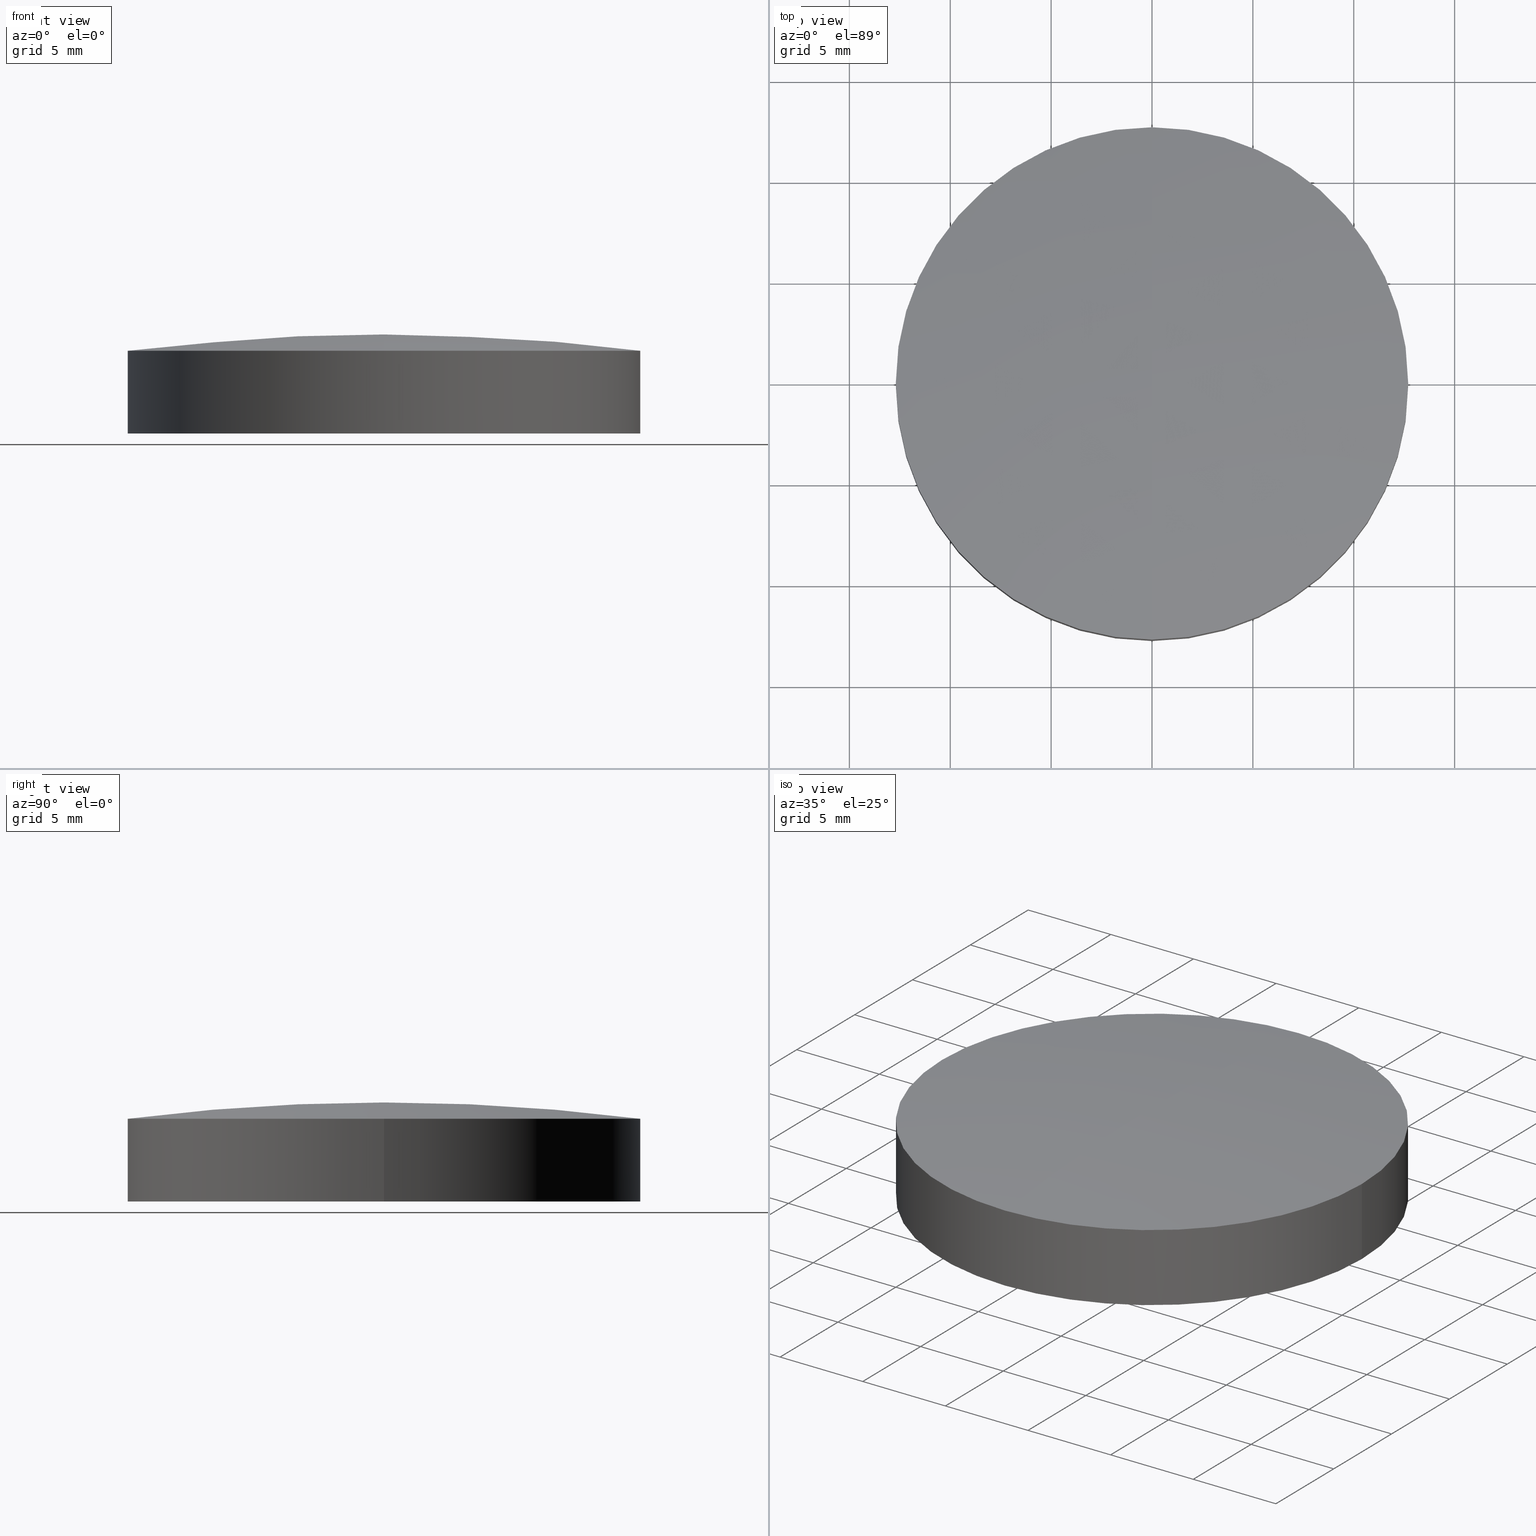
[diagram: canonical four-view strip — front | top / right | iso, engineering-drawing reading convention]
A machine part, canonical four-view strip (front | top / right | iso — engineering-drawing reading convention). The complete STEP part file that produces these views, byte-faithful:
ISO-10303-21;
HEADER;
FILE_DESCRIPTION (( 'STEP AP214' ),
    '1' );
FILE_NAME ('3473-E0W.STEP',
    '2009-12-21T17:00:09',
    ( ' ' ),
    ( ' ' ),
    'SwSTEP 2.0',
    'SolidWorks 2009',
    '' );
FILE_SCHEMA (( 'AUTOMOTIVE_DESIGN' ));
ENDSEC;

DATA;
#1 = ADVANCED_FACE ( 'NONE', ( #125 ), #168, .T. ) ;
#2 = ORIENTED_EDGE ( 'NONE', *, *, #20, .T. ) ;
#3 = VERTEX_POINT ( 'NONE', #68 ) ;
#4 = EDGE_LOOP ( 'NONE', ( #5, #59, #44, #35 ) ) ;
#5 = ORIENTED_EDGE ( 'NONE', *, *, #11, .F. ) ;
#6 = ORIENTED_EDGE ( 'NONE', *, *, #19, .T. ) ;
#7 = MANIFOLD_SOLID_BREP ( 'NONE', #53 ) ;
#8 = EDGE_CURVE ( 'NONE', #13, #9, #93, .T. ) ;
#9 = VERTEX_POINT ( 'NONE', #94 ) ;
#10 = ORIENTED_EDGE ( 'NONE', *, *, #11, .T. ) ;
#11 = EDGE_CURVE ( 'NONE', #13, #12, #127, .T. ) ;
#12 = VERTEX_POINT ( 'NONE', #150 ) ;
#13 = VERTEX_POINT ( 'NONE', #149 ) ;
#14 = EDGE_LOOP ( 'NONE', ( #60, #10, #15, #18 ) ) ;
#15 = ORIENTED_EDGE ( 'NONE', *, *, #16, .F. ) ;
#16 = EDGE_CURVE ( 'NONE', #17, #12, #189, .T. ) ;
#17 = VERTEX_POINT ( 'NONE', #190 ) ;
#18 = ORIENTED_EDGE ( 'NONE', *, *, #61, .F. ) ;
#19 = EDGE_CURVE ( 'NONE', #17, #25, #123, .T. ) ;
#20 = EDGE_CURVE ( 'NONE', #21, #23, #85, .T. ) ;
#21 = VERTEX_POINT ( 'NONE', #81 ) ;
#22 = EDGE_CURVE ( 'NONE', #25, #23, #141, .T. ) ;
#23 = VERTEX_POINT ( 'NONE', #137 ) ;
#24 = EDGE_CURVE ( 'NONE', #23, #3, #109, .T. ) ;
#25 = VERTEX_POINT ( 'NONE', #104 ) ;
#26 = ORIENTED_EDGE ( 'NONE', *, *, #20, .F. ) ;
#27 = EDGE_CURVE ( 'NONE', #3, #52, #102, .T. ) ;
#28 = ADVANCED_FACE ( 'NONE', ( #103 ), #118, .T. ) ;
#29 = EDGE_LOOP ( 'NONE', ( #41, #43, #55, #46, #30, #39 ) ) ;
#30 = ORIENTED_EDGE ( 'NONE', *, *, #47, .F. ) ;
#31 = ORIENTED_EDGE ( 'NONE', *, *, #56, .F. ) ;
#32 = EDGE_LOOP ( 'NONE', ( #37, #38, #33, #51 ) ) ;
#33 = ORIENTED_EDGE ( 'NONE', *, *, #49, .T. ) ;
#34 = EDGE_LOOP ( 'NONE', ( #2, #111, #58, #42 ) ) ;
#35 = ORIENTED_EDGE ( 'NONE', *, *, #16, .T. ) ;
#36 = EDGE_CURVE ( 'NONE', #25, #13, #183, .T. ) ;
#37 = ORIENTED_EDGE ( 'NONE', *, *, #27, .F. ) ;
#38 = ORIENTED_EDGE ( 'NONE', *, *, #47, .T. ) ;
#39 = ORIENTED_EDGE ( 'NONE', *, *, #24, .F. ) ;
#40 = ADVANCED_FACE ( 'NONE', ( #178 ), #233, .F. ) ;
#41 = ORIENTED_EDGE ( 'NONE', *, *, #22, .F. ) ;
#42 = ORIENTED_EDGE ( 'NONE', *, *, #54, .F. ) ;
#43 = ORIENTED_EDGE ( 'NONE', *, *, #36, .T. ) ;
#44 = ORIENTED_EDGE ( 'NONE', *, *, #19, .F. ) ;
#45 = ORIENTED_EDGE ( 'NONE', *, *, #22, .T. ) ;
#46 = ORIENTED_EDGE ( 'NONE', *, *, #56, .T. ) ;
#47 = EDGE_CURVE ( 'NONE', #3, #50, #280, .T. ) ;
#48 = ORIENTED_EDGE ( 'NONE', *, *, #49, .F. ) ;
#49 = EDGE_CURVE ( 'NONE', #50, #21, #273, .T. ) ;
#50 = VERTEX_POINT ( 'NONE', #215 ) ;
#51 = ORIENTED_EDGE ( 'NONE', *, *, #54, .T. ) ;
#52 = VERTEX_POINT ( 'NONE', #214 ) ;
#53 = CLOSED_SHELL ( 'NONE', ( #65, #62, #1, #57, #28, #40 ) ) ;
#54 = EDGE_CURVE ( 'NONE', #21, #52, #264, .T. ) ;
#55 = ORIENTED_EDGE ( 'NONE', *, *, #8, .T. ) ;
#56 = EDGE_CURVE ( 'NONE', #9, #50, #218, .T. ) ;
#57 = ADVANCED_FACE ( 'NONE', ( #266 ), #253, .T. ) ;
#58 = ORIENTED_EDGE ( 'NONE', *, *, #27, .T. ) ;
#59 = ORIENTED_EDGE ( 'NONE', *, *, #36, .F. ) ;
#60 = ORIENTED_EDGE ( 'NONE', *, *, #8, .F. ) ;
#61 = EDGE_CURVE ( 'NONE', #9, #17, #262, .T. ) ;
#62 = ADVANCED_FACE ( 'NONE', ( #263 ), #239, .T. ) ;
#63 = EDGE_LOOP ( 'NONE', ( #64, #6, #45, #26, #48, #31 ) ) ;
#64 = ORIENTED_EDGE ( 'NONE', *, *, #61, .T. ) ;
#65 = ADVANCED_FACE ( 'NONE', ( #240 ), #257, .F. ) ;
#66 = DIRECTION ( 'NONE',  ( -1.000000000000000000, 0.0000000000000000000, 0.0000000000000000000 ) ) ;
#67 = CARTESIAN_POINT ( 'NONE',  ( 0.0000000000000000000, 0.0000000000000000000, -97.54413107555106400 ) ) ;
#68 = CARTESIAN_POINT ( 'NONE',  ( -1.555250069354418500E-015, -12.69999999999999200, 1.646140624853117200 ) ) ;
#69 =( GEOMETRIC_REPRESENTATION_CONTEXT ( 3 ) GLOBAL_UNCERTAINTY_ASSIGNED_CONTEXT ( ( #146 ) ) GLOBAL_UNIT_ASSIGNED_CONTEXT ( ( #87, #145, #144 ) ) REPRESENTATION_CONTEXT ( 'NONE', 'WORKASPACE' ) );
#70 = SURFACE_STYLE_USAGE ( .BOTH. , #143 ) ;
#71 = COLOUR_RGB ( '',0.9568627450980391500, 0.9490196078431372100, 0.9607843137254902200 ) ;
#72 =( GEOMETRIC_REPRESENTATION_CONTEXT ( 3 ) GLOBAL_UNCERTAINTY_ASSIGNED_CONTEXT ( ( #73 ) ) GLOBAL_UNIT_ASSIGNED_CONTEXT ( ( #130, #129, #128 ) ) REPRESENTATION_CONTEXT ( 'NONE', 'WORKASPACE' ) );
#73 = UNCERTAINTY_MEASURE_WITH_UNIT (LENGTH_MEASURE( 1.000000000000000100E-005 ), #130, 'distance_accuracy_value', 'NONE');
#74 =( NAMED_UNIT ( * ) SI_UNIT ( $, .STERADIAN. ) SOLID_ANGLE_UNIT ( ) );
#75 = SURFACE_STYLE_FILL_AREA ( #76 ) ;
#76 = FILL_AREA_STYLE ('',( #77 ) ) ;
#77 = FILL_AREA_STYLE_COLOUR ( '', #78 ) ;
#78 = COLOUR_RGB ( '',0.7960784313725489700, 0.8235294117647058400, 0.9372549019607843100 ) ;
#79 = DIRECTION ( 'NONE',  ( 0.0000000000000000000, 1.000000000000000000, 0.0000000000000000000 ) ) ;
#80 = SURFACE_STYLE_FILL_AREA ( #131 ) ;
#81 = CARTESIAN_POINT ( 'NONE',  ( 0.0000000000000000000, 12.69999999999999200, 1.646140624853117200 ) ) ;
#82 = DIRECTION ( 'NONE',  ( 1.000000000000000000, 0.0000000000000000000, 0.0000000000000000000 ) ) ;
#83 = DIRECTION ( 'NONE',  ( -0.0000000000000000000, -0.0000000000000000000, 1.000000000000000000 ) ) ;
#84 = AXIS2_PLACEMENT_3D ( 'NONE', #124, #83, #82 ) ;
#85 = CIRCLE ( 'NONE', #84, 12.70000000000000100 ) ;
#86 = STYLED_ITEM ( 'NONE', ( #147 ), #1 ) ;
#87 =( LENGTH_UNIT ( ) NAMED_UNIT ( * ) SI_UNIT ( .MILLI., .METRE. ) );
#88 = MECHANICAL_DESIGN_GEOMETRIC_PRESENTATION_REPRESENTATION (  '', ( #133 ), #69 ) ;
#89 = DIRECTION ( 'NONE',  ( 1.000000000000000000, 0.0000000000000000000, 0.0000000000000000000 ) ) ;
#90 = DIRECTION ( 'NONE',  ( -0.0000000000000000000, -0.0000000000000000000, 1.000000000000000000 ) ) ;
#91 = CARTESIAN_POINT ( 'NONE',  ( 0.0000000000000000000, 0.0000000000000000000, -2.455868924448944200 ) ) ;
#92 = AXIS2_PLACEMENT_3D ( 'NONE', #91, #90, #89 ) ;
#93 = CIRCLE ( 'NONE', #92, 12.70000000000000500 ) ;
#94 = CARTESIAN_POINT ( 'NONE',  ( 12.70000000000000500, 0.0000000000000000000, -2.455868924448944200 ) ) ;
#95 =( LENGTH_UNIT ( ) NAMED_UNIT ( * ) SI_UNIT ( .MILLI., .METRE. ) );
#96 = PRESENTATION_LAYER_ASSIGNMENT (  '', '', ( #86 ) ) ;
#97 = UNCERTAINTY_MEASURE_WITH_UNIT (LENGTH_MEASURE( 1.000000000000000100E-005 ), #100, 'distance_accuracy_value', 'NONE');
#98 =( NAMED_UNIT ( * ) SI_UNIT ( $, .STERADIAN. ) SOLID_ANGLE_UNIT ( ) );
#99 =( NAMED_UNIT ( * ) PLANE_ANGLE_UNIT ( ) SI_UNIT ( $, .RADIAN. ) );
#100 =( LENGTH_UNIT ( ) NAMED_UNIT ( * ) SI_UNIT ( .MILLI., .METRE. ) );
#101 = AXIS2_PLACEMENT_3D ( 'NONE', #166, #165, #164 ) ;
#102 = CIRCLE ( 'NONE', #101, 100.0000000000000000 ) ;
#103 = FACE_OUTER_BOUND ( 'NONE', #29, .T. ) ;
#104 = CARTESIAN_POINT ( 'NONE',  ( -12.70000000000000600, 1.555250069354419900E-015, -2.455868924448944200 ) ) ;
#105 = DIRECTION ( 'NONE',  ( 1.000000000000000000, 0.0000000000000000000, 0.0000000000000000000 ) ) ;
#106 = DIRECTION ( 'NONE',  ( -0.0000000000000000000, -0.0000000000000000000, 1.000000000000000000 ) ) ;
#107 = CARTESIAN_POINT ( 'NONE',  ( 0.0000000000000000000, 0.0000000000000000000, 1.646140624853116300 ) ) ;
#108 = AXIS2_PLACEMENT_3D ( 'NONE', #107, #106, #105 ) ;
#109 = CIRCLE ( 'NONE', #108, 12.70000000000000100 ) ;
#110 = MECHANICAL_DESIGN_GEOMETRIC_PRESENTATION_REPRESENTATION (  '', ( #86 ), #167 ) ;
#111 = ORIENTED_EDGE ( 'NONE', *, *, #24, .T. ) ;
#112 =( NAMED_UNIT ( * ) PLANE_ANGLE_UNIT ( ) SI_UNIT ( $, .RADIAN. ) );
#113 = FILL_AREA_STYLE_COLOUR ( '', #177 ) ;
#114 = DIRECTION ( 'NONE',  ( 1.000000000000000000, 0.0000000000000000000, 0.0000000000000000000 ) ) ;
#115 = DIRECTION ( 'NONE',  ( -0.0000000000000000000, -0.0000000000000000000, 1.000000000000000000 ) ) ;
#116 = AXIS2_PLACEMENT_3D ( 'NONE', #117, #115, #114 ) ;
#117 = CARTESIAN_POINT ( 'NONE',  ( 0.0000000000000000000, 0.0000000000000000000, 9.860972679289998800 ) ) ;
#118 = CYLINDRICAL_SURFACE ( 'NONE', #116, 12.70000000000000300 ) ;
#119 = DIRECTION ( 'NONE',  ( 1.000000000000000000, 0.0000000000000000000, 0.0000000000000000000 ) ) ;
#120 = DIRECTION ( 'NONE',  ( -0.0000000000000000000, -0.0000000000000000000, 1.000000000000000000 ) ) ;
#121 = CARTESIAN_POINT ( 'NONE',  ( 0.0000000000000000000, 0.0000000000000000000, -2.455868924448944200 ) ) ;
#122 = AXIS2_PLACEMENT_3D ( 'NONE', #121, #120, #119 ) ;
#123 = CIRCLE ( 'NONE', #122, 12.70000000000000500 ) ;
#124 = CARTESIAN_POINT ( 'NONE',  ( 0.0000000000000000000, 0.0000000000000000000, 1.646140624853116300 ) ) ;
#125 = FACE_OUTER_BOUND ( 'NONE', #34, .T. ) ;
#126 = AXIS2_PLACEMENT_3D ( 'NONE', #153, #152, #151 ) ;
#127 = CIRCLE ( 'NONE', #126, 43.14000000000000100 ) ;
#128 =( NAMED_UNIT ( * ) SI_UNIT ( $, .STERADIAN. ) SOLID_ANGLE_UNIT ( ) );
#129 =( NAMED_UNIT ( * ) PLANE_ANGLE_UNIT ( ) SI_UNIT ( $, .RADIAN. ) );
#130 =( LENGTH_UNIT ( ) NAMED_UNIT ( * ) SI_UNIT ( .MILLI., .METRE. ) );
#131 = FILL_AREA_STYLE ('',( #142 ) ) ;
#132 = PRESENTATION_LAYER_ASSIGNMENT (  '', '', ( #133 ) ) ;
#133 = STYLED_ITEM ( 'NONE', ( #134 ), #7 ) ;
#134 = PRESENTATION_STYLE_ASSIGNMENT (( #135 ) ) ;
#135 = SURFACE_STYLE_USAGE ( .BOTH. , #136 ) ;
#136 = SURFACE_SIDE_STYLE ('',( #75 ) ) ;
#137 = CARTESIAN_POINT ( 'NONE',  ( -12.70000000000000100, 1.555250069354419300E-015, 1.646140624853116300 ) ) ;
#138 = DIRECTION ( 'NONE',  ( -0.0000000000000000000, -0.0000000000000000000, 1.000000000000000000 ) ) ;
#139 = VECTOR ( 'NONE', #138, 1000.000000000000000 ) ;
#140 = CARTESIAN_POINT ( 'NONE',  ( -12.70000000000000300, 1.555250069354419500E-015, 9.860972679289998800 ) ) ;
#141 = LINE ( 'NONE', #140, #139 ) ;
#142 = FILL_AREA_STYLE_COLOUR ( '', #71 ) ;
#143 = SURFACE_SIDE_STYLE ('',( #80 ) ) ;
#144 =( NAMED_UNIT ( * ) SI_UNIT ( $, .STERADIAN. ) SOLID_ANGLE_UNIT ( ) );
#145 =( NAMED_UNIT ( * ) PLANE_ANGLE_UNIT ( ) SI_UNIT ( $, .RADIAN. ) );
#146 = UNCERTAINTY_MEASURE_WITH_UNIT (LENGTH_MEASURE( 1.000000000000000100E-005 ), #87, 'distance_accuracy_value', 'NONE');
#147 = PRESENTATION_STYLE_ASSIGNMENT (( #70 ) ) ;
#148 = UNCERTAINTY_MEASURE_WITH_UNIT (LENGTH_MEASURE( 1.000000000000000100E-005 ), #95, 'distance_accuracy_value', 'NONE');
#149 = CARTESIAN_POINT ( 'NONE',  ( -1.555250069354420500E-015, -12.70000000000001000, -2.455868924448946000 ) ) ;
#150 = CARTESIAN_POINT ( 'NONE',  ( 0.0000000000000000000, 2.641475905194867600E-015, -0.5441310755510686500 ) ) ;
#151 = DIRECTION ( 'NONE',  ( -1.224606353822377300E-016, -1.000000000000000000, 0.0000000000000000000 ) ) ;
#152 = DIRECTION ( 'NONE',  ( -1.000000000000000000, 1.224606353822377300E-016, 0.0000000000000000000 ) ) ;
#153 = CARTESIAN_POINT ( 'NONE',  ( 0.0000000000000000000, 0.0000000000000000000, -43.68413107555106500 ) ) ;
#154 = MECHANICAL_DESIGN_GEOMETRIC_PRESENTATION_REPRESENTATION (  '', ( #156 ), #72 ) ;
#155 = PRESENTATION_LAYER_ASSIGNMENT (  '', '', ( #156 ) ) ;
#156 = STYLED_ITEM ( 'NONE', ( #157 ), #28 ) ;
#157 = PRESENTATION_STYLE_ASSIGNMENT (( #158 ) ) ;
#158 = SURFACE_STYLE_USAGE ( .BOTH. , #159 ) ;
#159 = SURFACE_SIDE_STYLE ('',( #160 ) ) ;
#160 = SURFACE_STYLE_FILL_AREA ( #161 ) ;
#161 = FILL_AREA_STYLE ('',( #162 ) ) ;
#162 = FILL_AREA_STYLE_COLOUR ( '', #163 ) ;
#163 = COLOUR_RGB ( '',0.9568627450980391500, 0.9490196078431372100, 0.9607843137254902200 ) ;
#164 = DIRECTION ( 'NONE',  ( -1.224606353822377300E-016, -1.000000000000000000, 0.0000000000000000000 ) ) ;
#165 = DIRECTION ( 'NONE',  ( -1.000000000000000000, 1.224606353822377300E-016, 0.0000000000000000000 ) ) ;
#166 = CARTESIAN_POINT ( 'NONE',  ( 0.0000000000000000000, 0.0000000000000000000, -97.54413107555106400 ) ) ;
#167 =( GEOMETRIC_REPRESENTATION_CONTEXT ( 3 ) GLOBAL_UNCERTAINTY_ASSIGNED_CONTEXT ( ( #148 ) ) GLOBAL_UNIT_ASSIGNED_CONTEXT ( ( #95, #112, #74 ) ) REPRESENTATION_CONTEXT ( 'NONE', 'WORKASPACE' ) );
#168 = SPHERICAL_SURFACE ( 'NONE', #184, 100.0000000000000000 ) ;
#169 = MECHANICAL_DESIGN_GEOMETRIC_PRESENTATION_REPRESENTATION (  '', ( #171 ), #212 ) ;
#170 = PRESENTATION_LAYER_ASSIGNMENT (  '', '', ( #171 ) ) ;
#171 = STYLED_ITEM ( 'NONE', ( #172 ), #40 ) ;
#172 = PRESENTATION_STYLE_ASSIGNMENT (( #173 ) ) ;
#173 = SURFACE_STYLE_USAGE ( .BOTH. , #174 ) ;
#174 = SURFACE_SIDE_STYLE ('',( #175 ) ) ;
#175 = SURFACE_STYLE_FILL_AREA ( #176 ) ;
#176 = FILL_AREA_STYLE ('',( #113 ) ) ;
#177 = COLOUR_RGB ( '',0.9568627450980391500, 0.9490196078431372100, 0.9607843137254902200 ) ;
#178 = FACE_OUTER_BOUND ( 'NONE', #4, .T. ) ;
#179 = DIRECTION ( 'NONE',  ( 1.000000000000000000, 0.0000000000000000000, 0.0000000000000000000 ) ) ;
#180 = DIRECTION ( 'NONE',  ( -0.0000000000000000000, -0.0000000000000000000, 1.000000000000000000 ) ) ;
#181 = CARTESIAN_POINT ( 'NONE',  ( 0.0000000000000000000, 0.0000000000000000000, -2.455868924448944200 ) ) ;
#182 = AXIS2_PLACEMENT_3D ( 'NONE', #181, #180, #179 ) ;
#183 = CIRCLE ( 'NONE', #182, 12.70000000000000500 ) ;
#184 = AXIS2_PLACEMENT_3D ( 'NONE', #67, #66, #79 ) ;
#185 = DIRECTION ( 'NONE',  ( 0.0000000000000000000, 0.0000000000000000000, -1.000000000000000000 ) ) ;
#186 = DIRECTION ( 'NONE',  ( 1.000000000000000000, -0.0000000000000000000, 0.0000000000000000000 ) ) ;
#187 = CARTESIAN_POINT ( 'NONE',  ( 0.0000000000000000000, 0.0000000000000000000, -43.68413107555106500 ) ) ;
#188 = AXIS2_PLACEMENT_3D ( 'NONE', #187, #186, #185 ) ;
#189 = CIRCLE ( 'NONE', #188, 43.14000000000000100 ) ;
#190 = CARTESIAN_POINT ( 'NONE',  ( 0.0000000000000000000, 12.70000000000001000, -2.455868924448946000 ) ) ;
#191 = SURFACE_STYLE_USAGE ( .BOTH. , #192 ) ;
#192 = SURFACE_SIDE_STYLE ('',( #193 ) ) ;
#193 = SURFACE_STYLE_FILL_AREA ( #223 ) ;
#194 = COLOUR_RGB ( '',0.9568627450980391500, 0.9490196078431372100, 0.9607843137254902200 ) ;
#195 =( GEOMETRIC_REPRESENTATION_CONTEXT ( 3 ) GLOBAL_UNCERTAINTY_ASSIGNED_CONTEXT ( ( #252 ) ) GLOBAL_UNIT_ASSIGNED_CONTEXT ( ( #282, #221, #213 ) ) REPRESENTATION_CONTEXT ( 'NONE', 'WORKASPACE' ) );
#196 = PRESENTATION_LAYER_ASSIGNMENT (  '', '', ( #197 ) ) ;
#197 = STYLED_ITEM ( 'NONE', ( #198 ), #65 ) ;
#198 = PRESENTATION_STYLE_ASSIGNMENT (( #199 ) ) ;
#199 = SURFACE_STYLE_USAGE ( .BOTH. , #200 ) ;
#200 = SURFACE_SIDE_STYLE ('',( #201 ) ) ;
#201 = SURFACE_STYLE_FILL_AREA ( #202 ) ;
#202 = FILL_AREA_STYLE ('',( #241 ) ) ;
#203 = COLOUR_RGB ( '',0.9568627450980391500, 0.9490196078431372100, 0.9607843137254902200 ) ;
#204 = DIRECTION ( 'NONE',  ( 1.000000000000000000, 0.0000000000000000000, 0.0000000000000000000 ) ) ;
#205 = DIRECTION ( 'NONE',  ( -0.0000000000000000000, -0.0000000000000000000, 1.000000000000000000 ) ) ;
#206 =( LENGTH_UNIT ( ) NAMED_UNIT ( * ) SI_UNIT ( .MILLI., .METRE. ) );
#207 = MECHANICAL_DESIGN_GEOMETRIC_PRESENTATION_REPRESENTATION (  '', ( #197 ), #258 ) ;
#208 = CARTESIAN_POINT ( 'NONE',  ( 0.0000000000000000000, 0.0000000000000000000, -43.68413107555106500 ) ) ;
#209 = PRESENTATION_LAYER_ASSIGNMENT (  '', '', ( #210 ) ) ;
#210 = STYLED_ITEM ( 'NONE', ( #211 ), #57 ) ;
#211 = PRESENTATION_STYLE_ASSIGNMENT (( #191 ) ) ;
#212 =( GEOMETRIC_REPRESENTATION_CONTEXT ( 3 ) GLOBAL_UNCERTAINTY_ASSIGNED_CONTEXT ( ( #97 ) ) GLOBAL_UNIT_ASSIGNED_CONTEXT ( ( #100, #99, #98 ) ) REPRESENTATION_CONTEXT ( 'NONE', 'WORKASPACE' ) );
#213 =( NAMED_UNIT ( * ) SI_UNIT ( $, .STERADIAN. ) SOLID_ANGLE_UNIT ( ) );
#214 = CARTESIAN_POINT ( 'NONE',  ( 0.0000000000000000000, 6.123031769111886300E-015, 2.455868924448947800 ) ) ;
#215 = CARTESIAN_POINT ( 'NONE',  ( 12.70000000000000100, 0.0000000000000000000, 1.646140624853116300 ) ) ;
#216 = CARTESIAN_POINT ( 'NONE',  ( 0.0000000000000000000, 0.0000000000000000000, -97.54413107555106400 ) ) ;
#217 = AXIS2_PLACEMENT_3D ( 'NONE', #216, #220, #219 ) ;
#218 = LINE ( 'NONE', #222, #268 ) ;
#219 = DIRECTION ( 'NONE',  ( 0.0000000000000000000, 0.0000000000000000000, -1.000000000000000000 ) ) ;
#220 = DIRECTION ( 'NONE',  ( 1.000000000000000000, 0.0000000000000000000, 0.0000000000000000000 ) ) ;
#221 =( NAMED_UNIT ( * ) PLANE_ANGLE_UNIT ( ) SI_UNIT ( $, .RADIAN. ) );
#222 = CARTESIAN_POINT ( 'NONE',  ( 12.70000000000000300, 0.0000000000000000000, 9.860972679289998800 ) ) ;
#223 = FILL_AREA_STYLE ('',( #265 ) ) ;
#224 = UNCERTAINTY_MEASURE_WITH_UNIT (LENGTH_MEASURE( 1.000000000000000100E-005 ), #206, 'distance_accuracy_value', 'NONE');
#225 =( NAMED_UNIT ( * ) SI_UNIT ( $, .STERADIAN. ) SOLID_ANGLE_UNIT ( ) );
#226 =( NAMED_UNIT ( * ) PLANE_ANGLE_UNIT ( ) SI_UNIT ( $, .RADIAN. ) );
#227 = FILL_AREA_STYLE_COLOUR ( '', #228 ) ;
#228 = COLOUR_RGB ( '',0.9568627450980391500, 0.9490196078431372100, 0.9607843137254902200 ) ;
#229 = DIRECTION ( 'NONE',  ( 1.000000000000000000, 0.0000000000000000000, 0.0000000000000000000 ) ) ;
#230 = DIRECTION ( 'NONE',  ( -0.0000000000000000000, -0.0000000000000000000, 1.000000000000000000 ) ) ;
#231 = DIRECTION ( 'NONE',  ( 0.0000000000000000000, 1.000000000000000000, 0.0000000000000000000 ) ) ;
#232 = DIRECTION ( 'NONE',  ( -1.000000000000000000, 0.0000000000000000000, 0.0000000000000000000 ) ) ;
#233 = SPHERICAL_SURFACE ( 'NONE', #275, 43.14000000000000100 ) ;
#234 = CARTESIAN_POINT ( 'NONE',  ( 0.0000000000000000000, 0.0000000000000000000, 1.646140624853116300 ) ) ;
#235 = AXIS2_PLACEMENT_3D ( 'NONE', #260, #279, #281 ) ;
#236 = DIRECTION ( 'NONE',  ( 1.000000000000000000, 0.0000000000000000000, 0.0000000000000000000 ) ) ;
#237 = DIRECTION ( 'NONE',  ( -0.0000000000000000000, -0.0000000000000000000, 1.000000000000000000 ) ) ;
#238 = AXIS2_PLACEMENT_3D ( 'NONE', #234, #237, #236 ) ;
#239 = CYLINDRICAL_SURFACE ( 'NONE', #243, 12.70000000000000300 ) ;
#240 = FACE_OUTER_BOUND ( 'NONE', #14, .T. ) ;
#241 = FILL_AREA_STYLE_COLOUR ( '', #203 ) ;
#242 = CARTESIAN_POINT ( 'NONE',  ( 0.0000000000000000000, 0.0000000000000000000, 9.860972679289998800 ) ) ;
#243 = AXIS2_PLACEMENT_3D ( 'NONE', #242, #205, #204 ) ;
#244 = UNCERTAINTY_MEASURE_WITH_UNIT (LENGTH_MEASURE( 1.000000000000000100E-005 ), #270, 'distance_accuracy_value', 'NONE');
#245 =( NAMED_UNIT ( * ) SI_UNIT ( $, .STERADIAN. ) SOLID_ANGLE_UNIT ( ) );
#246 = STYLED_ITEM ( 'NONE', ( #247 ), #62 ) ;
#247 = PRESENTATION_STYLE_ASSIGNMENT (( #248 ) ) ;
#248 = SURFACE_STYLE_USAGE ( .BOTH. , #249 ) ;
#249 = SURFACE_SIDE_STYLE ('',( #250 ) ) ;
#250 = SURFACE_STYLE_FILL_AREA ( #251 ) ;
#251 = FILL_AREA_STYLE ('',( #227 ) ) ;
#252 = UNCERTAINTY_MEASURE_WITH_UNIT (LENGTH_MEASURE( 1.000000000000000100E-005 ), #282, 'distance_accuracy_value', 'NONE');
#253 = SPHERICAL_SURFACE ( 'NONE', #277, 100.0000000000000000 ) ;
#254 =( GEOMETRIC_REPRESENTATION_CONTEXT ( 3 ) GLOBAL_UNCERTAINTY_ASSIGNED_CONTEXT ( ( #244 ) ) GLOBAL_UNIT_ASSIGNED_CONTEXT ( ( #270, #274, #245 ) ) REPRESENTATION_CONTEXT ( 'NONE', 'WORKASPACE' ) );
#255 = CARTESIAN_POINT ( 'NONE',  ( 0.0000000000000000000, 0.0000000000000000000, -43.68413107555106500 ) ) ;
#256 = AXIS2_PLACEMENT_3D ( 'NONE', #255, #322, #286 ) ;
#257 = SPHERICAL_SURFACE ( 'NONE', #256, 43.14000000000000100 ) ;
#258 =( GEOMETRIC_REPRESENTATION_CONTEXT ( 3 ) GLOBAL_UNCERTAINTY_ASSIGNED_CONTEXT ( ( #224 ) ) GLOBAL_UNIT_ASSIGNED_CONTEXT ( ( #206, #226, #225 ) ) REPRESENTATION_CONTEXT ( 'NONE', 'WORKASPACE' ) );
#259 = DIRECTION ( 'NONE',  ( 0.0000000000000000000, 1.000000000000000000, 0.0000000000000000000 ) ) ;
#260 = CARTESIAN_POINT ( 'NONE',  ( 0.0000000000000000000, 0.0000000000000000000, 1.646140624853116300 ) ) ;
#261 = AXIS2_PLACEMENT_3D ( 'NONE', #278, #230, #229 ) ;
#262 = CIRCLE ( 'NONE', #261, 12.70000000000000500 ) ;
#263 = FACE_OUTER_BOUND ( 'NONE', #63, .T. ) ;
#264 = CIRCLE ( 'NONE', #217, 100.0000000000000100 ) ;
#265 = FILL_AREA_STYLE_COLOUR ( '', #194 ) ;
#266 = FACE_OUTER_BOUND ( 'NONE', #32, .T. ) ;
#267 = DIRECTION ( 'NONE',  ( -0.0000000000000000000, -0.0000000000000000000, 1.000000000000000000 ) ) ;
#268 = VECTOR ( 'NONE', #267, 1000.000000000000000 ) ;
#269 = DIRECTION ( 'NONE',  ( -1.000000000000000000, 0.0000000000000000000, 0.0000000000000000000 ) ) ;
#270 =( LENGTH_UNIT ( ) NAMED_UNIT ( * ) SI_UNIT ( .MILLI., .METRE. ) );
#271 = MECHANICAL_DESIGN_GEOMETRIC_PRESENTATION_REPRESENTATION (  '', ( #246 ), #254 ) ;
#272 = PRESENTATION_LAYER_ASSIGNMENT (  '', '', ( #246 ) ) ;
#273 = CIRCLE ( 'NONE', #238, 12.70000000000000100 ) ;
#274 =( NAMED_UNIT ( * ) PLANE_ANGLE_UNIT ( ) SI_UNIT ( $, .RADIAN. ) );
#275 = AXIS2_PLACEMENT_3D ( 'NONE', #208, #269, #259 ) ;
#276 = CARTESIAN_POINT ( 'NONE',  ( 0.0000000000000000000, 0.0000000000000000000, -97.54413107555106400 ) ) ;
#277 = AXIS2_PLACEMENT_3D ( 'NONE', #276, #232, #231 ) ;
#278 = CARTESIAN_POINT ( 'NONE',  ( 0.0000000000000000000, 0.0000000000000000000, -2.455868924448944200 ) ) ;
#279 = DIRECTION ( 'NONE',  ( -0.0000000000000000000, -0.0000000000000000000, 1.000000000000000000 ) ) ;
#280 = CIRCLE ( 'NONE', #235, 12.70000000000000100 ) ;
#281 = DIRECTION ( 'NONE',  ( 1.000000000000000000, 0.0000000000000000000, 0.0000000000000000000 ) ) ;
#282 =( LENGTH_UNIT ( ) NAMED_UNIT ( * ) SI_UNIT ( .MILLI., .METRE. ) );
#283 = MECHANICAL_DESIGN_GEOMETRIC_PRESENTATION_REPRESENTATION (  '', ( #210 ), #195 ) ;
#284 =( NAMED_UNIT ( * ) SI_UNIT ( $, .STERADIAN. ) SOLID_ANGLE_UNIT ( ) );
#285 = DIRECTION ( 'NONE',  ( 0.0000000000000000000, 0.0000000000000000000, 1.000000000000000000 ) ) ;
#286 = DIRECTION ( 'NONE',  ( 0.0000000000000000000, 1.000000000000000000, 0.0000000000000000000 ) ) ;
#287 = STYLED_ITEM ( 'NONE', ( #288 ), #307 ) ;
#288 = PRESENTATION_STYLE_ASSIGNMENT (( #289 ) ) ;
#289 = SURFACE_STYLE_USAGE ( .BOTH. , #311 ) ;
#290 = MECHANICAL_DESIGN_GEOMETRIC_PRESENTATION_REPRESENTATION (  '', ( #287 ), #297 ) ;
#291 = PRESENTATION_LAYER_ASSIGNMENT (  '', '', ( #287 ) ) ;
#292 =( LENGTH_UNIT ( ) NAMED_UNIT ( * ) SI_UNIT ( .MILLI., .METRE. ) );
#293 = UNCERTAINTY_MEASURE_WITH_UNIT (LENGTH_MEASURE( 1.000000000000000100E-005 ), #292, 'distance_accuracy_value', 'NONE');
#294 = AXIS2_PLACEMENT_3D ( 'NONE', #315, #285, #295 ) ;
#295 = DIRECTION ( 'NONE',  ( 1.000000000000000000, 0.0000000000000000000, 0.0000000000000000000 ) ) ;
#296 =( NAMED_UNIT ( * ) PLANE_ANGLE_UNIT ( ) SI_UNIT ( $, .RADIAN. ) );
#297 =( GEOMETRIC_REPRESENTATION_CONTEXT ( 3 ) GLOBAL_UNCERTAINTY_ASSIGNED_CONTEXT ( ( #293 ) ) GLOBAL_UNIT_ASSIGNED_CONTEXT ( ( #292, #299, #316 ) ) REPRESENTATION_CONTEXT ( 'NONE', 'WORKASPACE' ) );
#298 = APPLICATION_CONTEXT ( 'automotive_design' ) ;
#299 =( NAMED_UNIT ( * ) PLANE_ANGLE_UNIT ( ) SI_UNIT ( $, .RADIAN. ) );
#300 =( LENGTH_UNIT ( ) NAMED_UNIT ( * ) SI_UNIT ( .MILLI., .METRE. ) );
#301 = SHAPE_DEFINITION_REPRESENTATION ( #314, #307 ) ;
#302 = FILL_AREA_STYLE_COLOUR ( '', #303 ) ;
#303 = COLOUR_RGB ( '',0.7960784313725489700, 0.8235294117647058400, 0.9372549019607843100 ) ;
#304 = APPLICATION_PROTOCOL_DEFINITION ( 'draft international standard', 'automotive_design', 1998, #305 ) ;
#305 = APPLICATION_CONTEXT ( 'automotive_design' ) ;
#306 = PRODUCT ( '3473-E0W', '3473-E0W', '', ( #308 ) ) ;
#307 = ADVANCED_BREP_SHAPE_REPRESENTATION ( '3473-E0W', ( #7, #294 ), #310 ) ;
#308 = PRODUCT_CONTEXT ( 'NONE', #298, 'mechanical' ) ;
#309 = APPLICATION_PROTOCOL_DEFINITION ( 'draft international standard', 'automotive_design', 1998, #298 ) ;
#310 =( GEOMETRIC_REPRESENTATION_CONTEXT ( 3 ) GLOBAL_UNCERTAINTY_ASSIGNED_CONTEXT ( ( #317 ) ) GLOBAL_UNIT_ASSIGNED_CONTEXT ( ( #300, #296, #284 ) ) REPRESENTATION_CONTEXT ( 'NONE', 'WORKASPACE' ) );
#311 = SURFACE_SIDE_STYLE ('',( #312 ) ) ;
#312 = SURFACE_STYLE_FILL_AREA ( #313 ) ;
#313 = FILL_AREA_STYLE ('',( #302 ) ) ;
#314 = PRODUCT_DEFINITION_SHAPE ( 'NONE', 'NONE',  #320 ) ;
#315 = CARTESIAN_POINT ( 'NONE',  ( 0.0000000000000000000, 0.0000000000000000000, 0.0000000000000000000 ) ) ;
#316 =( NAMED_UNIT ( * ) SI_UNIT ( $, .STERADIAN. ) SOLID_ANGLE_UNIT ( ) );
#317 = UNCERTAINTY_MEASURE_WITH_UNIT (LENGTH_MEASURE( 1.000000000000000100E-005 ), #300, 'distance_accuracy_value', 'NONE');
#318 = PRODUCT_RELATED_PRODUCT_CATEGORY ( 'part', '', ( #306 ) ) ;
#319 = PRODUCT_DEFINITION_FORMATION_WITH_SPECIFIED_SOURCE ( 'ANY', '', #306, .NOT_KNOWN. ) ;
#320 = PRODUCT_DEFINITION ( 'UNKNOWN', '', #319, #321 ) ;
#321 = PRODUCT_DEFINITION_CONTEXT ( 'detailed design', #305, 'design' ) ;
#322 = DIRECTION ( 'NONE',  ( -1.000000000000000000, 0.0000000000000000000, 0.0000000000000000000 ) ) ;
ENDSEC;
END-ISO-10303-21;
